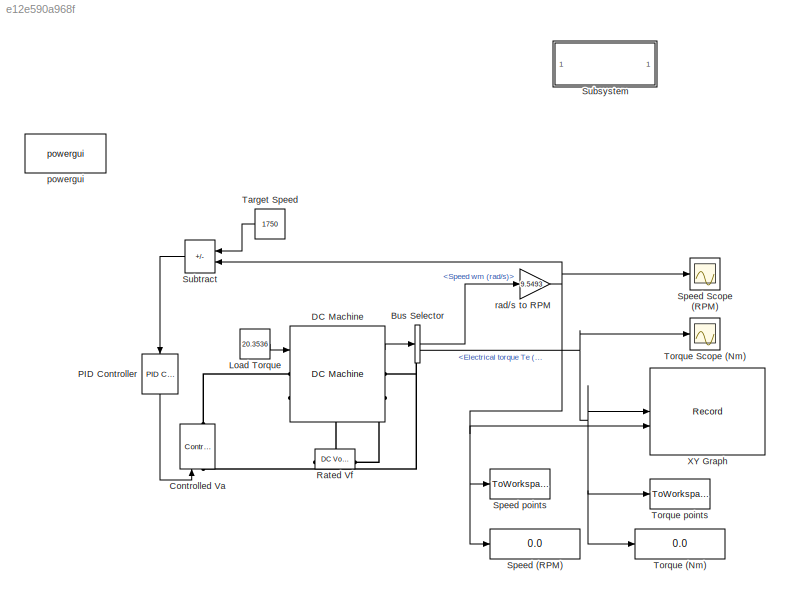
MODEL slx_e12e590a968f
KIND model
CONFIG AbsTol = 1e-3
CONFIG EnableMultiTasking = on
CONFIG FixedStep = auto
CONFIG MaxStep = 1e-4
CONFIG MinStep = auto
CONFIG RelTol = 1e-3
CONFIG SampleTimeConstraint = Unconstrained
CONFIG SolverName = VariableStepAuto
CONFIG StartTime = 0.0
CONFIG StopTime = 10.0
BLOCK [BusSelector] Bus Selector
  OutputSignals = Speed wm (rad/s),Electrical torque Te (n m)
BLOCK [Reference] Controlled Va  REF=spsControlledVoltageSourceLib/Controlled Voltage Source
  LibrarySourceBlock = sps_lib/Sources/Controlled Voltage Source
  NameLocation = right
  SourceBlock = spsControlledVoltageSourceLib/Controlled Voltage Source
  SourceType = Controlled Voltage Source
BLOCK [Reference] DC Machine  REF=spsDCMachineLib/DC Machine
  LibrarySourceBlock = sps_lib/Electrical Machines/DC Machine
  SourceBlock = spsDCMachineLib/DC Machine
  SourceType = DC machine
BLOCK [Constant] Load Torque
  Value = 20.3536
BLOCK [Reference] PID Controller  REF=slpidlib/PID Controller
  NameLocation = left
  SourceBlock = slpidlib/PID Controller
  SourceType = PID 1dof
BLOCK [Reference] Rated Vf  REF=spsDCVoltageSourceLib/DC Voltage Source
  LibrarySourceBlock = sps_lib/Sources/DC Voltage Source
  NameLocation = top
  SourceBlock = spsDCVoltageSourceLib/DC Voltage Source
  SourceType = DC Voltage Source
BLOCK [Display] Speed (RPM)
  Decimation = 1
BLOCK [Scope] Speed Scope (RPM)
  DefaultConfigurationName = spbscopes.TimeScopeBlockCfg
  Floating = off
  NumInputPorts = 1
  ScopeSpecificationString = spbscopes.TimeScopeBlockCfg('CurrentConfiguration', extmgr.ConfigurationSet(extmgr.Configuration('Core','General UI',true),extmgr.Configuration('Core','Source UI',true),extmgr.Configuration('Sources','WiredSimulink',true,'DataLoggingVariableName','ScopeData1'),extmgr.Configuration('Visuals','Time Domain',true,'DisplayPropertyDefaults',struct('MinYLimReal','-221.94525','MaxYLimReal','1968.98862','Y...<+1489ch>
  UserDataPersistent = on
BLOCK [ToWorkspace] Speed points
  FixptAsFi = on
  MaxDataPoints = inf
  SampleTime = -1
  VariableName = Y
BLOCK [SubSystem] Subsystem
  OpenFcn = open_system('simscape')
  ShowPortLabels = none
BLOCK [Sum] Subtract
  IconShape = rectangular
  Inputs = +-
BLOCK [Constant] Target Speed
  Value = 1750
BLOCK [Display] Torque (Nm)
  Decimation = 1
BLOCK [Scope] Torque Scope (Nm)
  DefaultConfigurationName = spbscopes.TimeScopeBlockCfg
  Floating = off
  NumInputPorts = 1
  ScopeSpecificationString = spbscopes.TimeScopeBlockCfg('CurrentConfiguration', extmgr.ConfigurationSet(extmgr.Configuration('Core','General UI',true),extmgr.Configuration('Core','Source UI',true),extmgr.Configuration('Sources','WiredSimulink',true,'DataLoggingVariableName','ScopeData2'),extmgr.Configuration('Visuals','Time Domain',true,'DisplayPropertyDefaults',struct('MinYLimReal','15.32468','MaxYLimReal','36.80856','YLabe...<+1442ch>
  UserDataPersistent = on
BLOCK [ToWorkspace] Torque points
  FixptAsFi = on
  MaxDataPoints = inf
  SampleTime = -1
  VariableName = X
BLOCK [Record] XY Graph
  CompatibilityTag = XY
  FileSettingsInternal = {"entries":[{"content":{"excelSettings":{"content":{},"type":"Streamout.ExcelSettings"}},"type":"Streamout.FileSettingStorage","uuid":"e0403f9c-a682-4a66-8fd4-28bf4d9a4526"}],"packageUris":["http://schema.mathworks.com/mf0/streamout_blocks/R2020a"],"version":"1.0"}
  Layout = [1 1]
  SignalsInternal = {"entries":[{"content":{"signals":[{"content":{"blockPath":["SystemDesign1/XY Graph"],"channel":[],"dimensions":[1],"domain":"SystemDesign1/XY Graph","lineColor":"#a2142f","plots":[1],"port":1,"sid":[""],"signalID":253,"signalName":"<Electrical torque Te (n m)>"},"type":"RecordBlkView.Signal","uuid":"d0d96af4-1cde-4269-a7ae-85a03a53983e"},{"content":{"blockPath":["SystemDesign1/XY Graph"],"channel...<+407ch>
  VisualizationBindings = {"xyplotplugin":{"info":[{"series":[{"bindingParametersList":[{"parameter":"X-Axis","signalID":253,"signalName":"<Electrical torque Te (n m)>"},{"parameter":"Y-Axis","signalID":257,"signalName":"rad\/s to RPM"}],"seriesID":771}],"subplotID":1}]}}
  st = -1
BLOCK [Reference] powergui  REF=sps_lib/powergui
  Priority = 1
  SourceBlock = sps_lib/powergui
  SourceType = PSB option menu block
BLOCK [Gain] rad//s to RPM
  Gain = 9.5493
LINE Bus Selector:1 -> rad//s to RPM:1
NET Bus Selector:2 -> Torque (Nm):1, Torque Scope (Nm):1, Torque points:1, XY Graph:1
LINE DC Machine:1 -> Bus Selector:1
LINE Load Torque:1 -> DC Machine:1
LINE PID Controller:1 -> Controlled Va:1
LINE Subtract:1 -> PID Controller:1
LINE Target Speed:1 -> Subtract:1
NET rad//s to RPM:1 -> Speed (RPM):1, Speed Scope (RPM):1, Speed points:1, Subtract:2, XY Graph:2
PLINE Controlled Va:LConn1 -- DC Machine:RConn1
PLINE Controlled Va:RConn1 -- DC Machine:LConn1
PLINE DC Machine:LConn2 -- Rated Vf:RConn1
PLINE DC Machine:RConn2 -- Rated Vf:LConn1
note: NET lines group one-source signal fan-out (src -> all destinations, sorted); 1:1 wires keep LINE
